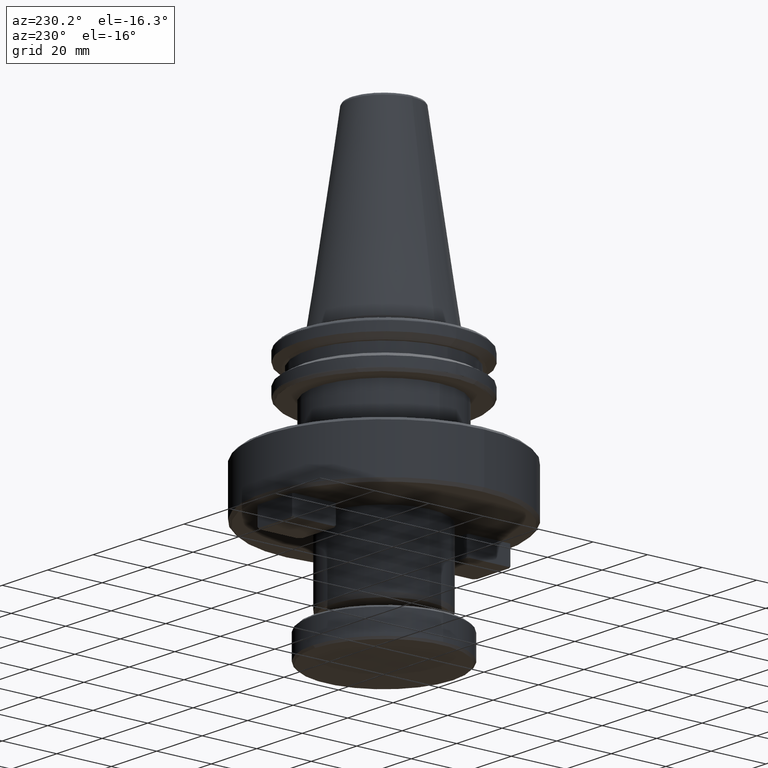
[diagram: clean part render]
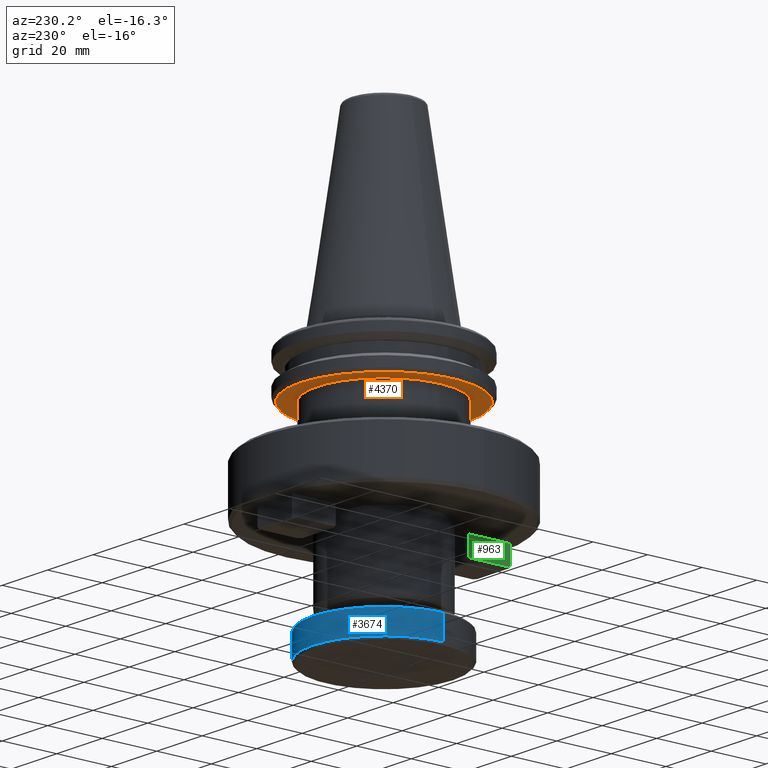
[diagram: same view with three faces highlighted in distinct colors, each labeled with its STEP entity id]
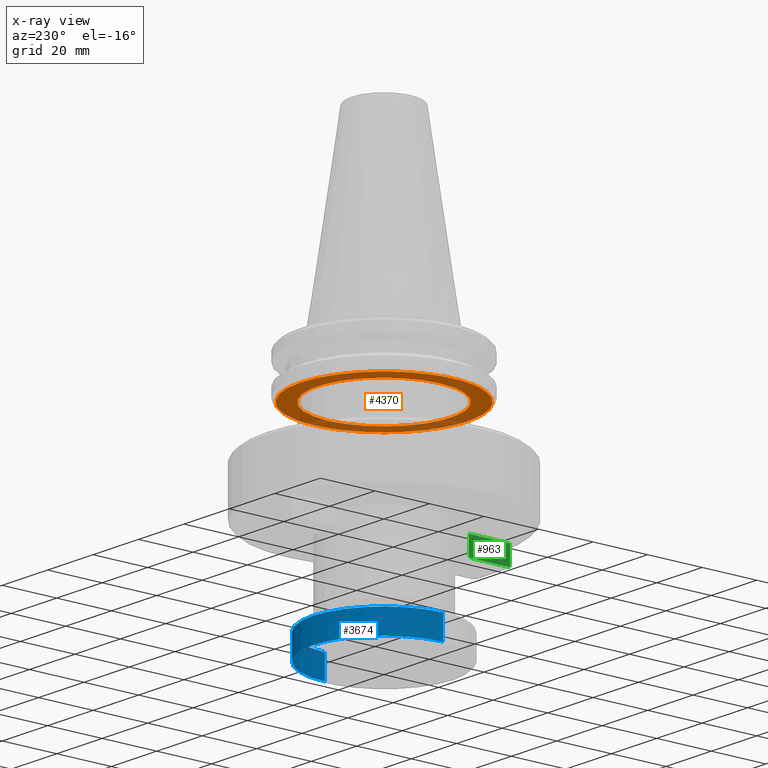
[diagram: x-ray of the same camera — body ghosted, the three highlighted faces saturated]
A machine part, auxiliary view with three faces highlighted in distinct colors.
The next image is the same camera in x-ray (body ghosted, the three faces saturated) — at least one of them is partly hidden behind the body in this view.
Their STEP definitions:

[orange] entity #4370 — the highlighted planar face has unit normal (0, 0, -1).
#21 = DIRECTION ( 'NONE',  ( -0.0000000000000000000, -0.0000000000000000000, -1.000000000000000000 ) ) ;
#43 = EDGE_CURVE ( 'NONE', #1158, #795, #3282, .T. ) ;
#159 = CARTESIAN_POINT ( 'NONE',  ( -9.218324187523917200, 29.16244582629286700, -19.10000000000000100 ) ) ;
#181 = CARTESIAN_POINT ( 'NONE',  ( 1.553459315967854200, 30.54770834860802300, -19.10000000000000900 ) ) ;
#196 = CARTESIAN_POINT ( 'NONE',  ( 8.686726280910074000, 29.34982920450148600, -19.10000000000000900 ) ) ;
#207 = CARTESIAN_POINT ( 'NONE',  ( 16.32111855271079600, 25.86556262578678700, -19.10000000000000100 ) ) ;
#224 = CARTESIAN_POINT ( 'NONE',  ( 24.32635705293869000, 18.53792103917297500, -19.10000000000000100 ) ) ;
#243 = CARTESIAN_POINT ( 'NONE',  ( 28.13442549670037700, 11.99570152419388200, -19.10000000000000500 ) ) ;
#258 = DIRECTION ( 'NONE',  ( -1.000000000000000000, 0.0000000000000000000, -0.0000000000000000000 ) ) ;
#291 = CARTESIAN_POINT ( 'NONE',  ( 24.50000000000000000, 0.0000000000000000000, -19.10000000000000500 ) ) ;
#438 = VERTEX_POINT ( 'NONE', #3830 ) ;
#448 = CARTESIAN_POINT ( 'NONE',  ( -29.50593695887982200, -8.050011640415929600, -19.10000000000000500 ) ) ;
#507 = ORIENTED_EDGE ( 'NONE', *, *, #43, .T. ) ;
#509 = CARTESIAN_POINT ( 'NONE',  ( 0.0000000000000000000, 2.166680460328873200E-015, -19.10000000000000500 ) ) ;
#525 = EDGE_CURVE ( 'NONE', #3223, #1986, #787, .T. ) ;
#528 = CARTESIAN_POINT ( 'NONE',  ( -8.767786026824518700, 29.30104552520869300, -19.10000000000000500 ) ) ;
#542 = CARTESIAN_POINT ( 'NONE',  ( 2.338937091250613300, 30.49485090081023100, -19.10000000000000100 ) ) ;
#561 = CARTESIAN_POINT ( 'NONE',  ( 11.26206975055332500, 28.44666309692501500, -19.10000000000000100 ) ) ;
#581 = CARTESIAN_POINT ( 'NONE',  ( 16.98334930198293300, 25.44334661411777900, -19.10000000000000500 ) ) ;
#591 = CARTESIAN_POINT ( 'NONE',  ( 24.61278002360990800, 18.15588099004128300, -19.10000000000000500 ) ) ;
#607 = CARTESIAN_POINT ( 'NONE',  ( 28.28372968616552200, 11.63773453184817400, -19.10000000000000900 ) ) ;
#629 = VERTEX_POINT ( 'NONE', #708 ) ;
#630 = FACE_BOUND ( 'NONE', #1817, .T. ) ;
#708 = CARTESIAN_POINT ( 'NONE',  ( 29.50593695887979000, 8.050011640416027300, -19.10000000000000500 ) ) ;
#747 = ORIENTED_EDGE ( 'NONE', *, *, #2159, .T. ) ;
#787 = CIRCLE ( 'NONE', #997, 30.58435880041008700 ) ;
#795 = VERTEX_POINT ( 'NONE', #448 ) ;
#801 = DIRECTION ( 'NONE',  ( -0.0000000000000000000, -0.0000000000000000000, 1.000000000000000000 ) ) ;
#811 = CIRCLE ( 'NONE', #2261, 30.58435880041008700 ) ;
#875 = CARTESIAN_POINT ( 'NONE',  ( -14.11067696108144500, 27.14738034496676300, -19.10000000000000500 ) ) ;
#881 = AXIS2_PLACEMENT_3D ( 'NONE', #3251, #3241, #3202 ) ;
#897 = CARTESIAN_POINT ( 'NONE',  ( -6.159607642682074100, 29.98451923137153200, -19.10000000000000500 ) ) ;
#906 = VERTEX_POINT ( 'NONE', #291 ) ;
#907 = DIRECTION ( 'NONE',  ( -0.0000000000000000000, -0.0000000000000000000, -1.000000000000000000 ) ) ;
#913 = CARTESIAN_POINT ( 'NONE',  ( 2.575749856820219300, 30.47575675141769800, -19.10000000000000500 ) ) ;
#927 = ORIENTED_EDGE ( 'NONE', *, *, #525, .F. ) ;
#934 = CARTESIAN_POINT ( 'NONE',  ( 12.72171218949350900, 27.81364574513149900, -19.10000000000000900 ) ) ;
#946 = CARTESIAN_POINT ( 'NONE',  ( 18.64294495310518600, 24.24904771131965500, -19.10000000000000900 ) ) ;
#966 = CARTESIAN_POINT ( 'NONE',  ( 25.60981177358732800, 16.74023069123413500, -19.10000000000000500 ) ) ;
#983 = CARTESIAN_POINT ( 'NONE',  ( 28.79848820868595600, 10.36927195262887700, -19.10000000000000500 ) ) ;
#997 = AXIS2_PLACEMENT_3D ( 'NONE', #1315, #1296, #1767 ) ;
#1150 = ORIENTED_EDGE ( 'NONE', *, *, #4350, .T. ) ;
#1158 = VERTEX_POINT ( 'NONE', #4073 ) ;
#1258 = CARTESIAN_POINT ( 'NONE',  ( -12.65743148084894200, 27.84302147053579500, -19.10000000000000500 ) ) ;
#1266 = EDGE_CURVE ( 'NONE', #3305, #629, #1864, .T. ) ;
#1282 = CARTESIAN_POINT ( 'NONE',  ( -3.335826507667983200, 30.41349938460541600, -19.10000000000000100 ) ) ;
#1292 = CARTESIAN_POINT ( 'NONE',  ( 4.194626064597124500, 30.30646449917461300, -19.10000000000000500 ) ) ;
#1296 = DIRECTION ( 'NONE',  ( -0.0000000000000000000, -0.0000000000000000000, 1.000000000000000000 ) ) ;
#1303 = CARTESIAN_POINT ( 'NONE',  ( -29.50593695887981500, 8.050011640415931400, -19.10000000000000500 ) ) ;
#1308 = CARTESIAN_POINT ( 'NONE',  ( 13.06536007812701200, 27.65325169537482700, -19.10000000000000100 ) ) ;
#1312 = CARTESIAN_POINT ( 'NONE',  ( 0.0000000000000000000, 0.0000000000000000000, -19.10000000000000500 ) ) ;
#1315 = CARTESIAN_POINT ( 'NONE',  ( 0.0000000000000000000, 0.0000000000000000000, -19.10000000000000500 ) ) ;
#1323 = CARTESIAN_POINT ( 'NONE',  ( 19.25930180620994000, 23.75930152089461000, -19.10000000000001200 ) ) ;
#1343 = CARTESIAN_POINT ( 'NONE',  ( 26.46695125748617600, 15.32790333300081500, -19.10000000000000900 ) ) ;
#1351 = CARTESIAN_POINT ( 'NONE',  ( 29.50593695887979000, 8.050011640416027300, -19.10000000000000500 ) ) ;
#1368 = AXIS2_PLACEMENT_3D ( 'NONE', #1312, #801, #2152 ) ;
#1611 = VERTEX_POINT ( 'NONE', #3702 ) ;
#1622 = CARTESIAN_POINT ( 'NONE',  ( -12.30602042319770800, 27.99943186576027500, -19.10000000000001600 ) ) ;
#1636 = CARTESIAN_POINT ( 'NONE',  ( -1.754889633223906300, 30.53434994063401200, -19.10000000000000500 ) ) ;
#1650 = CARTESIAN_POINT ( 'NONE',  ( 5.798126224598956200, 30.03039269424756300, -19.10000000000000100 ) ) ;
#1666 = CARTESIAN_POINT ( 'NONE',  ( -28.99013299704189700, 9.940434568560412700, -19.10000000000000100 ) ) ;
#1671 = CARTESIAN_POINT ( 'NONE',  ( 13.76217383423211000, 27.32011485464017000, -19.10000000000000500 ) ) ;
#1681 = CARTESIAN_POINT ( 'NONE',  ( 20.48123999505939400, 22.74936446789017100, -19.10000000000000100 ) ) ;
#1697 = CARTESIAN_POINT ( 'NONE',  ( 26.66158410836062100, 14.98553842598051500, -19.10000000000000500 ) ) ;
#1767 = DIRECTION ( 'NONE',  ( 1.000000000000000000, 0.0000000000000000000, 0.0000000000000000000 ) ) ;
#1805 = CARTESIAN_POINT ( 'NONE',  ( -27.75446977479884200, -12.84946292560067400, -19.10000000000000100 ) ) ;
#1806 = CARTESIAN_POINT ( 'NONE',  ( -27.60161413460691900, -13.17678050942531300, -19.10000000000001200 ) ) ;
#1809 = CARTESIAN_POINT ( 'NONE',  ( -27.28631539589520500, -13.82611176813281700, -19.10000000000000500 ) ) ;
#1817 = EDGE_LOOP ( 'NONE', ( #4106, #3552 ) ) ;
#1822 = CARTESIAN_POINT ( 'NONE',  ( 14.31298725537405200, -27.02868588326913700, -19.10000000000000500 ) ) ;
#1824 = EDGE_LOOP ( 'NONE', ( #507, #2512, #747, #927, #1150, #3383, #4107 ) ) ;
#1829 = CARTESIAN_POINT ( 'NONE',  ( 14.40947314747780600, -26.97737969063206300, -19.10000000000000500 ) ) ;
#1834 = CARTESIAN_POINT ( 'NONE',  ( 4.836401133027773200, -30.19953865469284100, -19.10000000000000100 ) ) ;
#1835 = CARTESIAN_POINT ( 'NONE',  ( 4.938364931540699700, -30.18303432026915800, -19.10000000000000500 ) ) ;
#1839 = CARTESIAN_POINT ( 'NONE',  ( 14.59906577416073300, -26.87526508911176700, -19.10000000000000500 ) ) ;
#1844 = CARTESIAN_POINT ( 'NONE',  ( 5.091218007676277900, -30.15789762491641200, -19.10000000000000900 ) ) ;
#1864 = CIRCLE ( 'NONE', #1368, 30.58435880041008700 ) ;
#1964 = CARTESIAN_POINT ( 'NONE',  ( -11.58667819376902100, 28.31160413811162600, -19.10000000000000900 ) ) ;
#1982 = CARTESIAN_POINT ( 'NONE',  ( -1.277990131494122400, 30.55800543620354400, -19.10000000000000500 ) ) ;
#1986 = VERTEX_POINT ( 'NONE', #2594 ) ;
#1998 = CARTESIAN_POINT ( 'NONE',  ( 6.178357567779041700, 29.95386665788899800, -19.10000000000000900 ) ) ;
#2006 = CARTESIAN_POINT ( 'NONE',  ( -26.56612284950205100, 15.28016086959555500, -19.10000000000000500 ) ) ;
#2010 = CARTESIAN_POINT ( 'NONE',  ( 15.52813128130545700, 26.35237235011442500, -19.10000000000000900 ) ) ;
#2024 = CARTESIAN_POINT ( 'NONE',  ( 22.71169545599505600, 20.49349008205810900, -19.10000000000000900 ) ) ;
#2028 = CARTESIAN_POINT ( 'NONE',  ( -20.23907096310340100, -22.95838911900774100, -19.10000000000000500 ) ) ;
#2042 = CARTESIAN_POINT ( 'NONE',  ( 27.03965408853028400, 14.30535447364331600, -19.10000000000000100 ) ) ;
#2046 = CARTESIAN_POINT ( 'NONE',  ( 5.447226833889317300, -30.09658397973939300, -19.10000000000000500 ) ) ;
#2047 = CARTESIAN_POINT ( 'NONE',  ( 6.156651080568798800, -29.96331126530298800, -19.10000000000000500 ) ) ;
#2050 = CARTESIAN_POINT ( 'NONE',  ( 7.565125950941371100, -29.65418414010071800, -19.10000000000000500 ) ) ;
#2107 = EDGE_CURVE ( 'NONE', #906, #438, #2710, .T. ) ;
#2110 = CARTESIAN_POINT ( 'NONE',  ( 28.94006249014968200, -9.948882374008352500, -19.10000000000000500 ) ) ;
#2152 = DIRECTION ( 'NONE',  ( 1.000000000000000000, 0.0000000000000000000, 0.0000000000000000000 ) ) ;
#2159 = EDGE_CURVE ( 'NONE', #1611, #1986, #3310, .T. ) ;
#2165 = CARTESIAN_POINT ( 'NONE',  ( 0.0000000000000000000, 0.0000000000000000000, -19.10000000000000500 ) ) ;
#2190 = AXIS2_PLACEMENT_3D ( 'NONE', #509, #2399, #258 ) ;
#2261 = AXIS2_PLACEMENT_3D ( 'NONE', #3369, #3113, #2674 ) ;
#2271 = CARTESIAN_POINT ( 'NONE',  ( -17.51886799372202900, 25.09995254383747500, -19.10000000000000500 ) ) ;
#2275 = CARTESIAN_POINT ( 'NONE',  ( -14.03061632106972200, -27.17633901377901000, -19.10000000000000900 ) ) ;
#2295 = CARTESIAN_POINT ( 'NONE',  ( -9.668279344121133400, 29.01896080072954100, -19.10000000000000500 ) ) ;
#2310 = CARTESIAN_POINT ( 'NONE',  ( 0.4531822849060669900, 30.59235866177671400, -19.10000000000000500 ) ) ;
#2327 = CARTESIAN_POINT ( 'NONE',  ( 7.517538265328743900, 29.67087649393396000, -19.10000000000000500 ) ) ;
#2343 = CARTESIAN_POINT ( 'NONE',  ( -24.35471234555335200, 18.50002675126641800, -19.10000000000000500 ) ) ;
#2350 = CARTESIAN_POINT ( 'NONE',  ( 16.18968749047009200, 25.94803225022423700, -19.10000000000000900 ) ) ;
#2365 = CARTESIAN_POINT ( 'NONE',  ( 24.03691940912555600, 18.91573389369128600, -19.10000000000000500 ) ) ;
#2381 = CARTESIAN_POINT ( 'NONE',  ( 27.91908508163535500, 12.49379923642603000, -19.10000000000000500 ) ) ;
#2399 = DIRECTION ( 'NONE',  ( 0.0000000000000000000, 0.0000000000000000000, -1.000000000000000000 ) ) ;
#2496 = CARTESIAN_POINT ( 'NONE',  ( -22.08505440506140600, -21.15804733461203200, -19.10000000000000100 ) ) ;
#2497 = CARTESIAN_POINT ( 'NONE',  ( -21.86129013470800300, -21.39082914621904400, -19.10000000000000100 ) ) ;
#2503 = CARTESIAN_POINT ( 'NONE',  ( -21.33119217829327100, -21.92514203399821300, -19.10000000000000500 ) ) ;
#2512 = ORIENTED_EDGE ( 'NONE', *, *, #3224, .F. ) ;
#2531 = DIRECTION ( 'NONE',  ( 1.000000000000000000, 0.0000000000000000000, 0.0000000000000000000 ) ) ;
#2536 = CARTESIAN_POINT ( 'NONE',  ( -27.86171205598864400, -12.61459124129725500, -19.10000000000000100 ) ) ;
#2538 = CARTESIAN_POINT ( 'NONE',  ( -27.88382002489398900, -12.56563911166203700, -19.10000000000000900 ) ) ;
#2563 = CARTESIAN_POINT ( 'NONE',  ( -22.95981042903576300, -20.22301021334099100, -19.10000000000000900 ) ) ;
#2572 = CARTESIAN_POINT ( 'NONE',  ( -22.30836331049845400, -20.92243750512144400, -19.10000000000000500 ) ) ;
#2573 = CARTESIAN_POINT ( 'NONE',  ( -22.23347045905034500, -21.00201711043238700, -19.10000000000000100 ) ) ;
#2583 = CARTESIAN_POINT ( 'NONE',  ( -15.74490649238654400, -26.27680638947031300, -19.10000000000000900 ) ) ;
#2585 = CARTESIAN_POINT ( 'NONE',  ( -14.12359010196327200, -27.12814019750088700, -19.10000000000000900 ) ) ;
#2590 = CARTESIAN_POINT ( 'NONE',  ( -27.81895210720312800, -12.70861568514636500, -19.10000000000000500 ) ) ;
#2594 = CARTESIAN_POINT ( 'NONE',  ( -24.35471234555335200, 18.50002675126641800, -19.10000000000000500 ) ) ;
#2609 = CARTESIAN_POINT ( 'NONE',  ( -24.67913322280990200, -18.07380832753302600, -19.10000000000000500 ) ) ;
#2613 = CARTESIAN_POINT ( 'NONE',  ( -23.78688261721307700, -19.25759772824421400, -19.10000000000000100 ) ) ;
#2618 = CARTESIAN_POINT ( 'NONE',  ( -26.61736808516047900, -15.10355864978086500, -19.10000000000000500 ) ) ;
#2631 = CARTESIAN_POINT ( 'NONE',  ( 9.892237708290188900, -28.94069923155255000, -19.10000000000000500 ) ) ;
#2640 = CARTESIAN_POINT ( 'NONE',  ( 10.24327173504158100, -28.81937833701286400, -19.10000000000000500 ) ) ;
#2649 = CARTESIAN_POINT ( 'NONE',  ( -29.08795742227681900, -9.581875916355663500, -19.09999999999999800 ) ) ;
#2653 = CARTESIAN_POINT ( 'NONE',  ( -28.55403585648227600, -11.07200170706531000, -19.10000000000000100 ) ) ;
#2656 = CARTESIAN_POINT ( 'NONE',  ( -8.917516567687371800, 29.25582015750815400, -19.10000000000000500 ) ) ;
#2659 = CARTESIAN_POINT ( 'NONE',  ( 23.37016937102523100, -19.73720656645907200, -19.10000000000000500 ) ) ;
#2664 = CARTESIAN_POINT ( 'NONE',  ( 24.31095900104777700, -18.59161355311120500, -19.10000000000000900 ) ) ;
#2668 = CARTESIAN_POINT ( 'NONE',  ( 2.103333420339649000, 30.51262227300270200, -19.10000000000000100 ) ) ;
#2674 = DIRECTION ( 'NONE',  ( 1.000000000000000000, 0.0000000000000000000, 0.0000000000000000000 ) ) ;
#2690 = CARTESIAN_POINT ( 'NONE',  ( 10.41034370100355100, 28.76445469558826700, -19.10000000000000500 ) ) ;
#2692 = CARTESIAN_POINT ( 'NONE',  ( -25.46428937167067700, -16.94027857338939600, -19.10000000000000500 ) ) ;
#2697 = CARTESIAN_POINT ( 'NONE',  ( 22.45416143053250800, -20.76589565598027000, -19.10000000000000500 ) ) ;
#2699 = CARTESIAN_POINT ( 'NONE',  ( 16.38572052405262600, 25.82468945861612000, -19.10000000000000100 ) ) ;
#2703 = CARTESIAN_POINT ( 'NONE',  ( -8.158427338735364700, -29.48125659895528400, -19.10000000000000500 ) ) ;
#2704 = CARTESIAN_POINT ( 'NONE',  ( -6.763633612821551300, -29.84719582226912800, -19.10000000000000500 ) ) ;
#2710 = CIRCLE ( 'NONE', #3186, 24.50000000000000000 ) ;
#2717 = CARTESIAN_POINT ( 'NONE',  ( 24.51742230446014800, 18.28446092688399100, -19.10000000000000500 ) ) ;
#2734 = CARTESIAN_POINT ( 'NONE',  ( 28.22432639104233900, 11.78107541670503600, -19.10000000000000500 ) ) ;
#2769 = CARTESIAN_POINT ( 'NONE',  ( 19.93308098988654800, -23.26029377377305400, -19.10000000000000900 ) ) ;
#2770 = CARTESIAN_POINT ( 'NONE',  ( 21.20610461385350800, -22.10596665135101400, -19.10000000000000100 ) ) ;
#2774 = CARTESIAN_POINT ( 'NONE',  ( -13.84162992577100000, -27.27309109750847700, -19.10000000000000500 ) ) ;
#2803 = CARTESIAN_POINT ( 'NONE',  ( 25.05482143306667100, -17.56072154682019400, -19.10000000000000500 ) ) ;
#2813 = AXIS2_PLACEMENT_3D ( 'NONE', #2165, #21, #2531 ) ;
#2831 = CARTESIAN_POINT ( 'NONE',  ( -4.683322544848318900, -30.22365628541788900, -19.10000000000000500 ) ) ;
#2836 = CARTESIAN_POINT ( 'NONE',  ( -4.636279539811212700, -30.23090493186514000, -19.10000000000000100 ) ) ;
#2842 = EDGE_CURVE ( 'NONE', #438, #906, #3210, .T. ) ;
#2852 = CARTESIAN_POINT ( 'NONE',  ( -3.359542261740482900, -30.40384640239971500, -19.10000000000000500 ) ) ;
#2855 = CARTESIAN_POINT ( 'NONE',  ( 3.166151006705770800, -30.46140382597060600, -19.10000000000001200 ) ) ;
#2859 = CARTESIAN_POINT ( 'NONE',  ( 4.783350766199017600, -30.20798338819395200, -19.10000000000000500 ) ) ;
#2866 = CARTESIAN_POINT ( 'NONE',  ( 9.588757991871142700, -29.04235927048969000, -19.10000000000000100 ) ) ;
#2869 = CARTESIAN_POINT ( 'NONE',  ( 9.640580262597561400, -29.02520083562890100, -19.10000000000000500 ) ) ;
#2877 = CARTESIAN_POINT ( 'NONE',  ( 10.94079956306805100, -28.56608249322954800, -19.10000000000000900 ) ) ;
#2916 = CARTESIAN_POINT ( 'NONE',  ( -10.34692081642918300, -28.79347578717342800, -19.10000000000000500 ) ) ;
#2919 = CARTESIAN_POINT ( 'NONE',  ( -9.489238364085435900, -29.07503083623364400, -19.10000000000000900 ) ) ;
#2923 = CARTESIAN_POINT ( 'NONE',  ( -4.538187366338957100, -30.24578697828068400, -19.10000000000000100 ) ) ;
#2963 = CARTESIAN_POINT ( 'NONE',  ( 28.04473044301726900, -12.20290262157235800, -19.10000000000000100 ) ) ;
#2974 = CARTESIAN_POINT ( 'NONE',  ( -4.391022105728267500, -30.26774995785368500, -19.10000000000000500 ) ) ;
#2975 = CARTESIAN_POINT ( 'NONE',  ( -4.047447494820515200, -30.31647627983856800, -19.10000000000000900 ) ) ;
#2997 = CARTESIAN_POINT ( 'NONE',  ( 27.92527061286967100, -12.47325821572505000, -19.10000000000000900 ) ) ;
#3001 = CARTESIAN_POINT ( 'NONE',  ( -15.99112436415940900, 26.12219316515105300, -19.10000000000000900 ) ) ;
#3012 = CARTESIAN_POINT ( 'NONE',  ( -19.24823797460855300, -23.78338029378941300, -19.10000000000001200 ) ) ;
#3013 = CARTESIAN_POINT ( 'NONE',  ( -17.19359987793792800, -25.35249706495551100, -19.10000000000000900 ) ) ;
#3015 = CARTESIAN_POINT ( 'NONE',  ( -7.396785857642844200, 29.70357443817780300, -19.10000000000000100 ) ) ;
#3029 = CARTESIAN_POINT ( 'NONE',  ( 0.0000000000000000000, 0.0000000000000000000, -19.10000000000000500 ) ) ;
#3030 = CARTESIAN_POINT ( 'NONE',  ( 29.29697359829781100, -8.815762972852718700, -19.10000000000000500 ) ) ;
#3031 = CARTESIAN_POINT ( 'NONE',  ( -25.10709178878912300, -17.46754491848619800, -19.10000000000000500 ) ) ;
#3033 = CARTESIAN_POINT ( 'NONE',  ( 2.495993614183678500, 30.48239565653807800, -19.10000000000000500 ) ) ;
#3035 = CARTESIAN_POINT ( 'NONE',  ( -25.97824210456839800, -16.16214345845010000, -19.10000000000000100 ) ) ;
#3036 = CARTESIAN_POINT ( 'NONE',  ( -25.49448276515892400, -16.89479980230323600, -19.10000000000000900 ) ) ;
#3046 = CARTESIAN_POINT ( 'NONE',  ( 12.23810548582505600, 28.03197362945626700, -19.10000000000000500 ) ) ;
#3049 = CARTESIAN_POINT ( 'NONE',  ( 25.72060642469137200, -16.54900938329657500, -19.10000000000000500 ) ) ;
#3055 = CARTESIAN_POINT ( 'NONE',  ( 25.91506848432963000, -16.24456535706762800, -19.10000000000000500 ) ) ;
#3063 = CARTESIAN_POINT ( 'NONE',  ( 17.76311001678113400, 24.91123626348944600, -19.10000000000000100 ) ) ;
#3065 = CARTESIAN_POINT ( 'NONE',  ( -25.40531514043783900, -17.02859819238312900, -19.10000000000000500 ) ) ;
#3066 = CARTESIAN_POINT ( 'NONE',  ( -25.31652938757393300, -17.16082103678996200, -19.10000000000000100 ) ) ;
#3069 = CARTESIAN_POINT ( 'NONE',  ( 30.58435880041008700, 0.0000000000000000000, -19.10000000000000500 ) ) ;
#3079 = CARTESIAN_POINT ( 'NONE',  ( 25.07711885281372900, 17.51959354323408400, -19.10000000000000100 ) ) ;
#3092 = CARTESIAN_POINT ( 'NONE',  ( 28.31382758094056800, 11.56430445685524000, -19.10000000000000900 ) ) ;
#3113 = DIRECTION ( 'NONE',  ( -0.0000000000000000000, -0.0000000000000000000, 1.000000000000000000 ) ) ;
#3114 = CARTESIAN_POINT ( 'NONE',  ( 22.88153702451384300, -20.29572449130178000, -19.10000000000000100 ) ) ;
#3137 = CARTESIAN_POINT ( 'NONE',  ( 9.741308101238560700, -28.99155239477984500, -19.10000000000000900 ) ) ;
#3146 = CARTESIAN_POINT ( 'NONE',  ( 26.29437709911257700, -15.63042418696883700, -19.10000000000000500 ) ) ;
#3170 = CARTESIAN_POINT ( 'NONE',  ( -13.55750927079556900, -27.41669403125807100, -19.10000000000000500 ) ) ;
#3177 = CARTESIAN_POINT ( 'NONE',  ( -12.89007364166148800, -27.74109120042835400, -19.10000000000000100 ) ) ;
#3184 = CARTESIAN_POINT ( 'NONE',  ( -9.441481674779128100, -29.09057131782455500, -19.10000000000000500 ) ) ;
#3186 = AXIS2_PLACEMENT_3D ( 'NONE', #3029, #907, #3367 ) ;
#3194 = CARTESIAN_POINT ( 'NONE',  ( 17.87849741863398000, -24.82948193938068100, -19.10000000000000100 ) ) ;
#3195 = CARTESIAN_POINT ( 'NONE',  ( 25.55219655712748800, -16.80738867178014600, -19.10000000000000900 ) ) ;
#3200 = CARTESIAN_POINT ( 'NONE',  ( 25.57975895856417400, -16.76540627108043000, -19.10000000000000100 ) ) ;
#3202 = DIRECTION ( 'NONE',  ( 1.000000000000000000, 0.0000000000000000000, 0.0000000000000000000 ) ) ;
#3210 = CIRCLE ( 'NONE', #2813, 24.50000000000000000 ) ;
#3223 = VERTEX_POINT ( 'NONE', #3325 ) ;
#3224 = EDGE_CURVE ( 'NONE', #1611, #795, #3806, .T. ) ;
#3235 = CARTESIAN_POINT ( 'NONE',  ( -1.980707750522268800, -30.53825656188765000, -19.10000000000000900 ) ) ;
#3240 = CARTESIAN_POINT ( 'NONE',  ( -0.7936655208069568500, -30.58432798036122000, -19.10000000000000100 ) ) ;
#3241 = DIRECTION ( 'NONE',  ( -0.0000000000000000000, -0.0000000000000000000, 1.000000000000000000 ) ) ;
#3244 = CARTESIAN_POINT ( 'NONE',  ( -5.550699401406691700, -30.08776695510170300, -19.10000000000000500 ) ) ;
#3250 = CARTESIAN_POINT ( 'NONE',  ( 12.31769431721571500, -28.01687458684701700, -19.10000000000000500 ) ) ;
#3251 = CARTESIAN_POINT ( 'NONE',  ( 0.0000000000000000000, 0.0000000000000000000, -19.10000000000000500 ) ) ;
#3256 = CARTESIAN_POINT ( 'NONE',  ( 13.46675684607612000, -27.47306857769193300, -19.10000000000000900 ) ) ;
#3257 = CARTESIAN_POINT ( 'NONE',  ( 1.587331041613742700, -30.58428776442982800, -19.10000000000000500 ) ) ;
#3282 = B_SPLINE_CURVE_WITH_KNOTS ( 'NONE', 3,
 ( #3507, #3030, #2110, #3315, #3314, #2963, #3603, #3601, #2997, #3645, #3643, #3146, #3055, #3049, #3610, #3200, #3195, #2803, #2664, #2659, #3114, #3493, #3489, #2697, #2770, #2769, #3194, #4333, #4132, #4225, #1839, #1829, #1822, #3256, #3250, #2877, #2640, #2631, #3137, #2869, #2866, #3593, #2050, #2047, #2046, #1844, #1835, #1834, #2859, #2855, #3257, #3240, #3235, #2852, #2975, #2974, #2923, #2836, #2831, #3244, #2704, #2703, #3429, #3513, #3509, #3184, #2919, #2916, #3334, #3177, #3170, #2774, #2275, #2585, #2583, #3013, #3012, #2028, #2503, #2497, #2496, #2573, #2572, #2563, #2613, #2609, #3031, #3066, #3065, #2692, #3036, #3035, #2618, #1809, #1806, #1805, #2590, #2536, #2538, #2653, #2649, #3521 ),
 .UNSPECIFIED., .F., .F.,
 ( 4, 1, 1, 1, 1, 2, 2, 1, 1, 1, 1, 2, 2, 1, 1, 1, 2, 2, 2, 1, 1, 1, 2, 2, 1, 1, 1, 1, 2, 2, 1, 1, 1, 1, 2, 2, 2, 1, 1, 1, 1, 2, 2, 1, 1, 1, 1, 2, 2, 1, 1, 1, 2, 2, 2, 1, 1, 1, 2, 2, 1, 1, 1, 1, 2, 2, 1, 1, 1, 1, 2, 2, 4 ),
 ( 0.0000000000000000000, 0.03125000000000043000, 0.04687500000000063800, 0.05468750000000073600, 0.05859375000000075600, 0.06054687500000074200, 0.06250000000000072200, 0.09375000000000025000, 0.1093750000000000400, 0.1171874999999999200, 0.1210937499999997900, 0.1230468749999997600, 0.1249999999999997400, 0.1562499999999992200, 0.1718749999999989700, 0.1796874999999988600, 0.1835937499999988100, 0.1874999999999987500, 0.2499999999999989500, 0.2812499999999990000, 0.2968749999999991100, 0.3046874999999991700, 0.3085937499999991700, 0.3124999999999991100, 0.3437499999999990600, 0.3593749999999990600, 0.3671874999999990600, 0.3710937499999991100, 0.3730468749999991700, 0.3749999999999991700, 0.4062499999999991100, 0.4218749999999990600, 0.4296874999999990600, 0.4335937499999990600, 0.4355468749999990600, 0.4374999999999990600, 0.4999999999999995000, 0.5312499999999997800, 0.5468749999999998900, 0.5546875000000000000, 0.5585937500000000000, 0.5605468750000001100, 0.5625000000000001100, 0.5937500000000005600, 0.6093750000000007800, 0.6171875000000008900, 0.6210937500000008900, 0.6230468750000008900, 0.6250000000000008900, 0.6562500000000010000, 0.6718750000000010000, 0.6796875000000010000, 0.6835937500000011100, 0.6875000000000011100, 0.7500000000000013300, 0.7812500000000013300, 0.7968750000000013300, 0.8046875000000013300, 0.8085937500000012200, 0.8125000000000012200, 0.8437500000000014400, 0.8593750000000015500, 0.8671875000000015500, 0.8710937500000015500, 0.8730468750000015500, 0.8750000000000015500, 0.9062500000000016700, 0.9218750000000017800, 0.9296875000000017800, 0.9335937500000017800, 0.9355468750000017800, 0.9375000000000017800, 1.000000000000000000 ),
 .UNSPECIFIED. ) ;
#3305 = VERTEX_POINT ( 'NONE', #3069 ) ;
#3310 = B_SPLINE_CURVE_WITH_KNOTS ( 'NONE', 3,
 ( #1303, #1666, #4000, #2006, #4296, #2343 ),
 .UNSPECIFIED., .F., .F.,
 ( 4, 2, 4 ),
 ( 0.0000000000000000000, 0.5000000000000000000, 1.000000000000000000 ),
 .UNSPECIFIED. ) ;
#3314 = CARTESIAN_POINT ( 'NONE',  ( 28.18215722315982000, -11.88429583552771100, -19.10000000000000100 ) ) ;
#3315 = CARTESIAN_POINT ( 'NONE',  ( 28.44748858146412100, -11.24368615697392600, -19.10000000000000100 ) ) ;
#3325 = CARTESIAN_POINT ( 'NONE',  ( -18.50002675126641800, 24.35471234555335200, -19.10000000000000500 ) ) ;
#3334 = CARTESIAN_POINT ( 'NONE',  ( -11.53725264662773900, -28.34718016712044900, -19.10000000000000900 ) ) ;
#3341 = CARTESIAN_POINT ( 'NONE',  ( -13.14593330072873200, 27.61811721527876200, -19.10000000000000900 ) ) ;
#3352 = CARTESIAN_POINT ( 'NONE',  ( -4.279122215993030700, 30.29015284362106900, -19.10000000000000500 ) ) ;
#3367 = DIRECTION ( 'NONE',  ( 1.000000000000000000, 0.0000000000000000000, 0.0000000000000000000 ) ) ;
#3369 = CARTESIAN_POINT ( 'NONE',  ( 0.0000000000000000000, 0.0000000000000000000, -19.10000000000000500 ) ) ;
#3370 = CARTESIAN_POINT ( 'NONE',  ( 3.271282400886674800, 30.41520625110938200, -19.10000000000000500 ) ) ;
#3383 = ORIENTED_EDGE ( 'NONE', *, *, #1266, .F. ) ;
#3386 = CARTESIAN_POINT ( 'NONE',  ( 12.92802695592982500, 27.71772311958008600, -19.10000000000000900 ) ) ;
#3403 = CARTESIAN_POINT ( 'NONE',  ( 19.01361294775681200, 23.95638265829615000, -19.09999999999999800 ) ) ;
#3417 = CARTESIAN_POINT ( 'NONE',  ( 26.18838791784893500, 15.80329267786272900, -19.10000000000000500 ) ) ;
#3429 = CARTESIAN_POINT ( 'NONE',  ( -8.850750154841392700, -29.27696876187939500, -19.10000000000000500 ) ) ;
#3438 = CARTESIAN_POINT ( 'NONE',  ( 29.18634062978594200, 9.221269143563914000, -19.10000000000000500 ) ) ;
#3489 = CARTESIAN_POINT ( 'NONE',  ( 22.52513206187470700, -20.68888644021010800, -19.10000000000000900 ) ) ;
#3493 = CARTESIAN_POINT ( 'NONE',  ( 22.66821511925894200, -20.53202962012767000, -19.10000000000000500 ) ) ;
#3507 = CARTESIAN_POINT ( 'NONE',  ( 29.50593695887981500, -8.050011640415931400, -19.10000000000000500 ) ) ;
#3509 = CARTESIAN_POINT ( 'NONE',  ( -9.343182468531940900, -29.12229317852812500, -19.10000000000000500 ) ) ;
#3513 = CARTESIAN_POINT ( 'NONE',  ( -9.195643051181685100, -29.16949528698672400, -19.10000000000000900 ) ) ;
#3521 = CARTESIAN_POINT ( 'NONE',  ( -29.50593695887982200, -8.050011640415929600, -19.10000000000000500 ) ) ;
#3552 = ORIENTED_EDGE ( 'NONE', *, *, #2842, .F. ) ;
#3593 = CARTESIAN_POINT ( 'NONE',  ( 8.754606771855487000, -29.31622083907685900, -19.10000000000000100 ) ) ;
#3601 = CARTESIAN_POINT ( 'NONE',  ( 27.94464134489557200, -12.42979159005786200, -19.10000000000001200 ) ) ;
#3603 = CARTESIAN_POINT ( 'NONE',  ( 27.98481301560113700, -12.33908451847029400, -19.10000000000000500 ) ) ;
#3610 = CARTESIAN_POINT ( 'NONE',  ( 25.63623530936496000, -16.67892256050461000, -19.10000000000000500 ) ) ;
#3643 = CARTESIAN_POINT ( 'NONE',  ( 27.01453231070431500, -14.38112937620777400, -19.10000000000000900 ) ) ;
#3645 = CARTESIAN_POINT ( 'NONE',  ( 27.56587331839861600, -13.27428387458943800, -19.09999999999999800 ) ) ;
#3671 = CARTESIAN_POINT ( 'NONE',  ( -12.44675998882116000, 27.93716668423903100, -19.10000000000000500 ) ) ;
#3681 = CARTESIAN_POINT ( 'NONE',  ( -2.229972106739516000, 30.50583071842478200, -19.10000000000000500 ) ) ;
#3687 = B_SPLINE_CURVE_WITH_KNOTS ( 'NONE', 3,
 ( #3952, #2271, #3001, #875, #3341, #1258, #3671, #1622, #3965, #1964, #4252, #2295, #159, #2656, #528, #3015, #897, #3352, #1282, #3681, #1636, #3981, #1982, #4269, #2310, #181, #2668, #542, #3033, #913, #3370, #1292, #3700, #1650, #3993, #1998, #4285, #2327, #196, #2690, #561, #3046, #934, #3386, #1308, #3708, #1671, #4003, #2010, #4298, #2350, #207, #2699, #581, #3063, #946, #3403, #1323, #3721, #1681, #4016, #2024, #4310, #2365, #224, #2717, #591, #3079, #966, #3417, #1343, #3735, #1697, #4026, #2042, #4323, #2381, #243, #2734, #607, #3092, #983, #3438, #1351 ),
 .UNSPECIFIED., .F., .F.,
 ( 4, 1, 1, 1, 1, 2, 2, 1, 1, 2, 2, 2, 1, 1, 2, 2, 1, 1, 1, 2, 2, 1, 1, 1, 2, 2, 2, 1, 1, 1, 2, 2, 1, 1, 1, 2, 2, 1, 1, 2, 2, 2, 1, 1, 2, 2, 1, 1, 1, 2, 2, 1, 1, 1, 2, 2, 4 ),
 ( 0.0000000000000000000, 0.06250000000000043000, 0.09375000000000063800, 0.1093750000000007500, 0.1171875000000008000, 0.1210937500000008700, 0.1250000000000009400, 0.1562500000000016900, 0.1718750000000020300, 0.1796875000000022200, 0.1875000000000024100, 0.2500000000000042200, 0.2812500000000051600, 0.2968750000000056100, 0.3046875000000058300, 0.3125000000000060500, 0.3437500000000069400, 0.3593750000000073800, 0.3671875000000076100, 0.3710937500000076600, 0.3750000000000077700, 0.4062500000000085500, 0.4218750000000089900, 0.4296875000000092100, 0.4335937500000093800, 0.4375000000000094900, 0.5000000000000109900, 0.5312500000000117700, 0.5468750000000121000, 0.5546875000000122100, 0.5585937500000123200, 0.5625000000000123200, 0.5937500000000121000, 0.6093750000000119900, 0.6171875000000117700, 0.6210937500000117700, 0.6250000000000116600, 0.6562500000000113200, 0.6718750000000111000, 0.6796875000000108800, 0.6875000000000107700, 0.7500000000000093300, 0.7812500000000086600, 0.7968750000000082200, 0.8046875000000079900, 0.8125000000000076600, 0.8437500000000067700, 0.8593750000000063300, 0.8671875000000061100, 0.8710937500000060000, 0.8750000000000058800, 0.9062500000000048800, 0.9218750000000044400, 0.9296875000000043300, 0.9335937500000041100, 0.9375000000000038900, 1.000000000000000000 ),
 .UNSPECIFIED. ) ;
#3700 = CARTESIAN_POINT ( 'NONE',  ( 5.264802480930863600, 30.13058555675097900, -19.10000000000000100 ) ) ;
#3702 = CARTESIAN_POINT ( 'NONE',  ( -29.50593695887981500, 8.050011640415931400, -19.10000000000000500 ) ) ;
#3708 = CARTESIAN_POINT ( 'NONE',  ( 13.13240365255261600, 27.62148087363473100, -19.10000000000000500 ) ) ;
#3721 = CARTESIAN_POINT ( 'NONE',  ( 19.38055795302008400, 23.66050113822976500, -19.10000000000001200 ) ) ;
#3735 = CARTESIAN_POINT ( 'NONE',  ( 26.58403738893923300, 15.12268211273652300, -19.10000000000000100 ) ) ;
#3806 = CIRCLE ( 'NONE', #881, 30.58435880041008700 ) ;
#3830 = CARTESIAN_POINT ( 'NONE',  ( -24.50000000000000000, 3.000384657911015500E-015, -19.10000000000000500 ) ) ;
#3952 = CARTESIAN_POINT ( 'NONE',  ( -18.50002675126641800, 24.35471234555335200, -19.10000000000000500 ) ) ;
#3965 = CARTESIAN_POINT ( 'NONE',  ( -12.23711360209160000, 28.02961778932873900, -19.10000000000000900 ) ) ;
#3981 = CARTESIAN_POINT ( 'NONE',  ( -1.437913567965121800, 30.55090690001179600, -19.10000000000000900 ) ) ;
#3993 = CARTESIAN_POINT ( 'NONE',  ( 6.026315443778401900, 29.98482716932647900, -19.10000000000000500 ) ) ;
#4000 = CARTESIAN_POINT ( 'NONE',  ( -28.29883549210119800, 11.76494105805098300, -19.10000000000000500 ) ) ;
#4003 = CARTESIAN_POINT ( 'NONE',  ( 14.58823882257053300, 26.89349445919003000, -19.10000000000000500 ) ) ;
#4016 = CARTESIAN_POINT ( 'NONE',  ( 21.40627702113345900, 21.88112117654264600, -19.10000000000000500 ) ) ;
#4026 = CARTESIAN_POINT ( 'NONE',  ( 26.70070361132738800, 14.91571867381870400, -19.10000000000000100 ) ) ;
#4073 = CARTESIAN_POINT ( 'NONE',  ( 29.50593695887981500, -8.050011640415931400, -19.10000000000000500 ) ) ;
#4106 = ORIENTED_EDGE ( 'NONE', *, *, #2107, .F. ) ;
#4107 = ORIENTED_EDGE ( 'NONE', *, *, #4210, .F. ) ;
#4132 = CARTESIAN_POINT ( 'NONE',  ( 15.53753395421813000, -26.34988902405435600, -19.10000000000000900 ) ) ;
#4210 = EDGE_CURVE ( 'NONE', #1158, #3305, #811, .T. ) ;
#4225 = CARTESIAN_POINT ( 'NONE',  ( 14.88253584773120200, -26.72066063288397000, -19.10000000000000100 ) ) ;
#4230 = FACE_OUTER_BOUND ( 'NONE', #1824, .T. ) ;
#4252 = CARTESIAN_POINT ( 'NONE',  ( -10.70938079741142000, 28.66019770656558000, -19.10000000000000100 ) ) ;
#4269 = CARTESIAN_POINT ( 'NONE',  ( -0.4908188656923748200, 30.58687863642091600, -19.10000000000000900 ) ) ;
#4285 = CARTESIAN_POINT ( 'NONE',  ( 6.256069620680725600, 29.93772805485906800, -19.10000000000000900 ) ) ;
#4296 = CARTESIAN_POINT ( 'NONE',  ( -25.54018883534800800, 16.93931054832113100, -19.10000000000000500 ) ) ;
#4298 = CARTESIAN_POINT ( 'NONE',  ( 15.99211500375794700, 26.07096171698068000, -19.10000000000000900 ) ) ;
#4310 = CARTESIAN_POINT ( 'NONE',  ( 23.34168654117829400, 19.78065602349450500, -19.10000000000000500 ) ) ;
#4323 = CARTESIAN_POINT ( 'NONE',  ( 27.46611760510352000, 13.47920850658973700, -19.10000000000000900 ) ) ;
#4333 = CARTESIAN_POINT ( 'NONE',  ( 16.82180190648200500, -25.56823429586928900, -19.10000000000000500 ) ) ;
#4339 = PLANE ( 'NONE',  #2190 ) ;
#4350 = EDGE_CURVE ( 'NONE', #3223, #629, #3687, .T. ) ;
#4370 = ADVANCED_FACE ( 'NONE', ( #630, #4230 ), #4339, .T. ) ;

[blue] entity #3674 — the highlighted cylindrical surface (partial cylindrical patch) has radius 26 mm, axis along (0, 0, 1).
#40 = EDGE_CURVE ( 'NONE', #2088, #4048, #2839, .T. ) ;
#72 = EDGE_CURVE ( 'NONE', #1327, #3974, #3115, .T. ) ;
#95 = VECTOR ( 'NONE', #3373, 1000.000000000000000 ) ;
#108 = CARTESIAN_POINT ( 'NONE',  ( -25.99999999999999600, 3.184081677783117800E-015, -95.29999999999998300 ) ) ;
#183 = CARTESIAN_POINT ( 'NONE',  ( 25.99999999999999600, 0.0000000000000000000, 0.0000000000000000000 ) ) ;
#426 = VECTOR ( 'NONE', #1522, 1000.000000000000000 ) ;
#779 = DIRECTION ( 'NONE',  ( -0.0000000000000000000, -0.0000000000000000000, 1.000000000000000000 ) ) ;
#838 = DIRECTION ( 'NONE',  ( -1.000000000000000000, 0.0000000000000000000, 0.0000000000000000000 ) ) ;
#854 = ORIENTED_EDGE ( 'NONE', *, *, #2438, .T. ) ;
#903 = DIRECTION ( 'NONE',  ( 1.000000000000000000, 0.0000000000000000000, 0.0000000000000000000 ) ) ;
#921 = CARTESIAN_POINT ( 'NONE',  ( 0.0000000000000000000, 0.0000000000000000000, 0.0000000000000000000 ) ) ;
#1004 = CIRCLE ( 'NONE', #1209, 25.99999999999999600 ) ;
#1019 = DIRECTION ( 'NONE',  ( 0.0000000000000000000, 0.0000000000000000000, 1.000000000000000000 ) ) ;
#1209 = AXIS2_PLACEMENT_3D ( 'NONE', #1997, #2268, #2009 ) ;
#1327 = VERTEX_POINT ( 'NONE', #1840 ) ;
#1448 = AXIS2_PLACEMENT_3D ( 'NONE', #2554, #779, #838 ) ;
#1494 = VERTEX_POINT ( 'NONE', #108 ) ;
#1522 = DIRECTION ( 'NONE',  ( 0.0000000000000000000, 0.0000000000000000000, 1.000000000000000000 ) ) ;
#1571 = AXIS2_PLACEMENT_3D ( 'NONE', #2069, #2672, #2671 ) ;
#1599 = EDGE_CURVE ( 'NONE', #1327, #1729, #3616, .T. ) ;
#1729 = VERTEX_POINT ( 'NONE', #3420 ) ;
#1766 = ORIENTED_EDGE ( 'NONE', *, *, #72, .T. ) ;
#1840 = CARTESIAN_POINT ( 'NONE',  ( 25.99999999999999600, 0.0000000000000000000, -95.29999999999998300 ) ) ;
#1997 = CARTESIAN_POINT ( 'NONE',  ( 0.0000000000000000000, 0.0000000000000000000, -95.29999999999998300 ) ) ;
#2009 = DIRECTION ( 'NONE',  ( 1.000000000000000000, 0.0000000000000000000, 0.0000000000000000000 ) ) ;
#2069 = CARTESIAN_POINT ( 'NONE',  ( 0.0000000000000000000, 0.0000000000000000000, -86.70000000000001700 ) ) ;
#2077 = DIRECTION ( 'NONE',  ( 0.0000000000000000000, 0.0000000000000000000, 1.000000000000000000 ) ) ;
#2088 = VERTEX_POINT ( 'NONE', #2265 ) ;
#2111 = DIRECTION ( 'NONE',  ( 1.000000000000000000, 0.0000000000000000000, 0.0000000000000000000 ) ) ;
#2153 = CYLINDRICAL_SURFACE ( 'NONE', #3808, 25.99999999999999600 ) ;
#2235 = ORIENTED_EDGE ( 'NONE', *, *, #3812, .F. ) ;
#2265 = CARTESIAN_POINT ( 'NONE',  ( 0.0000000000000000000, 26.00000000000001800, -86.70000000000001700 ) ) ;
#2268 = DIRECTION ( 'NONE',  ( 0.0000000000000000000, 0.0000000000000000000, 1.000000000000000000 ) ) ;
#2438 = EDGE_CURVE ( 'NONE', #1494, #4048, #4085, .T. ) ;
#2454 = CARTESIAN_POINT ( 'NONE',  ( 0.0000000000000000000, 0.0000000000000000000, -95.29999999999998300 ) ) ;
#2554 = CARTESIAN_POINT ( 'NONE',  ( 0.0000000000000000000, 0.0000000000000000000, -86.70000000000001700 ) ) ;
#2574 = EDGE_LOOP ( 'NONE', ( #3426, #854, #3573, #2235, #4100, #1766 ) ) ;
#2671 = DIRECTION ( 'NONE',  ( -1.000000000000000000, -8.881784197001252300E-016, 0.0000000000000000000 ) ) ;
#2672 = DIRECTION ( 'NONE',  ( -0.0000000000000000000, -0.0000000000000000000, 1.000000000000000000 ) ) ;
#2839 = CIRCLE ( 'NONE', #1571, 25.99999999999999300 ) ;
#2867 = CIRCLE ( 'NONE', #1448, 25.99999999999999300 ) ;
#2999 = CARTESIAN_POINT ( 'NONE',  ( -25.99999999999999300, 3.184081677783117400E-015, -86.70000000000001700 ) ) ;
#3091 = AXIS2_PLACEMENT_3D ( 'NONE', #2454, #2077, #2111 ) ;
#3115 = CIRCLE ( 'NONE', #3091, 25.99999999999999600 ) ;
#3373 = DIRECTION ( 'NONE',  ( 0.0000000000000000000, 0.0000000000000000000, 1.000000000000000000 ) ) ;
#3420 = CARTESIAN_POINT ( 'NONE',  ( 25.99999999999999300, 0.0000000000000000000, -86.70000000000001700 ) ) ;
#3426 = ORIENTED_EDGE ( 'NONE', *, *, #3796, .T. ) ;
#3573 = ORIENTED_EDGE ( 'NONE', *, *, #40, .F. ) ;
#3578 = CARTESIAN_POINT ( 'NONE',  ( -25.99999999999999600, 3.184081677783117800E-015, 0.0000000000000000000 ) ) ;
#3616 = LINE ( 'NONE', #183, #95 ) ;
#3674 = ADVANCED_FACE ( 'NONE', ( #3937 ), #2153, .T. ) ;
#3796 = EDGE_CURVE ( 'NONE', #3974, #1494, #1004, .T. ) ;
#3808 = AXIS2_PLACEMENT_3D ( 'NONE', #921, #1019, #903 ) ;
#3812 = EDGE_CURVE ( 'NONE', #1729, #2088, #2867, .T. ) ;
#3867 = CARTESIAN_POINT ( 'NONE',  ( 3.184081677783116200E-015, 25.99999999999998200, -95.29999999999998300 ) ) ;
#3937 = FACE_OUTER_BOUND ( 'NONE', #2574, .T. ) ;
#3974 = VERTEX_POINT ( 'NONE', #3867 ) ;
#4048 = VERTEX_POINT ( 'NONE', #2999 ) ;
#4085 = LINE ( 'NONE', #3578, #426 ) ;
#4100 = ORIENTED_EDGE ( 'NONE', *, *, #1599, .F. ) ;

[green] entity #963 — the highlighted planar face has unit normal (1, -0, 0).
#94 = DIRECTION ( 'NONE',  ( 1.517883041479706200E-015, 1.000000000000000000, 0.0000000000000000000 ) ) ;
#100 = DIRECTION ( 'NONE',  ( 1.000000000000000000, -1.517883041479706200E-015, 0.0000000000000000000 ) ) ;
#122 = VERTEX_POINT ( 'NONE', #2194 ) ;
#126 = PLANE ( 'NONE',  #2756 ) ;
#129 = EDGE_CURVE ( 'NONE', #122, #4212, #3631, .T. ) ;
#142 = CARTESIAN_POINT ( 'NONE',  ( -8.000000000000028400, -40.00000000000002800, -62.00000000000000700 ) ) ;
#216 = VECTOR ( 'NONE', #1974, 1000.000000000000000 ) ;
#359 = EDGE_CURVE ( 'NONE', #709, #3684, #1386, .T. ) ;
#399 = ORIENTED_EDGE ( 'NONE', *, *, #359, .F. ) ;
#494 = LINE ( 'NONE', #2966, #1214 ) ;
#495 = CARTESIAN_POINT ( 'NONE',  ( -8.000000000000028400, -39.59999999999998700, -61.60000000000002300 ) ) ;
#503 = VERTEX_POINT ( 'NONE', #2129 ) ;
#526 = DIRECTION ( 'NONE',  ( 2.503857664561949500E-015, 0.8164965809277328100, -0.5773502691896162900 ) ) ;
#595 = CARTESIAN_POINT ( 'NONE',  ( -8.000000000000028400, -39.59999999999998700, -55.00000000000000700 ) ) ;
#709 = VERTEX_POINT ( 'NONE', #595 ) ;
#712 = CARTESIAN_POINT ( 'NONE',  ( -8.000000000000028400, -39.59999999999999400, -61.60000000000002300 ) ) ;
#738 = EDGE_LOOP ( 'NONE', ( #3232, #3074, #3592, #399, #2959, #3875 ) ) ;
#755 = EDGE_CURVE ( 'NONE', #3684, #122, #4217, .T. ) ;
#963 = ADVANCED_FACE ( 'NONE', ( #3905 ), #126, .F. ) ;
#964 = CARTESIAN_POINT ( 'NONE',  ( -8.000000000000028400, 43.00000000000000000, -55.00000000000000700 ) ) ;
#1173 = EDGE_CURVE ( 'NONE', #4212, #2612, #494, .T. ) ;
#1214 = VECTOR ( 'NONE', #4405, 1000.000000000000000 ) ;
#1386 = LINE ( 'NONE', #3792, #216 ) ;
#1764 = CARTESIAN_POINT ( 'NONE',  ( -8.000000000000003600, -24.40000000000004500, -62.00000000000000700 ) ) ;
#1974 = DIRECTION ( 'NONE',  ( 0.0000000000000000000, -0.0000000000000000000, -1.000000000000000000 ) ) ;
#2129 = CARTESIAN_POINT ( 'NONE',  ( -8.000000000000010700, -24.40000000000004800, -55.00000000000000700 ) ) ;
#2187 = EDGE_CURVE ( 'NONE', #709, #503, #2601, .T. ) ;
#2194 = CARTESIAN_POINT ( 'NONE',  ( -8.000000000000021300, -39.03431457505075700, -62.00000000000001400 ) ) ;
#2202 = DIRECTION ( 'NONE',  ( 1.517883041479706200E-015, 1.000000000000000000, 0.0000000000000000000 ) ) ;
#2263 = EDGE_CURVE ( 'NONE', #2612, #503, #2493, .T. ) ;
#2493 = LINE ( 'NONE', #1764, #3989 ) ;
#2601 = LINE ( 'NONE', #964, #4261 ) ;
#2612 = VERTEX_POINT ( 'NONE', #4245 ) ;
#2756 = AXIS2_PLACEMENT_3D ( 'NONE', #142, #100, #94 ) ;
#2936 = CARTESIAN_POINT ( 'NONE',  ( -8.000000000000028400, -40.00000000000002800, -62.00000000000001400 ) ) ;
#2959 = ORIENTED_EDGE ( 'NONE', *, *, #2187, .T. ) ;
#2966 = CARTESIAN_POINT ( 'NONE',  ( -8.000000000000005300, -24.96568542494928500, -62.00000000000000700 ) ) ;
#3074 = ORIENTED_EDGE ( 'NONE', *, *, #129, .F. ) ;
#3232 = ORIENTED_EDGE ( 'NONE', *, *, #1173, .F. ) ;
#3400 = DIRECTION ( 'NONE',  ( -0.0000000000000000000, 1.000000000000000000, 0.0000000000000000000 ) ) ;
#3436 = VECTOR ( 'NONE', #526, 1000.000000000000000 ) ;
#3592 = ORIENTED_EDGE ( 'NONE', *, *, #755, .F. ) ;
#3631 = LINE ( 'NONE', #2936, #3729 ) ;
#3684 = VERTEX_POINT ( 'NONE', #712 ) ;
#3729 = VECTOR ( 'NONE', #2202, 1000.000000000000000 ) ;
#3756 = CARTESIAN_POINT ( 'NONE',  ( -8.000000000000007100, -24.96568542494928900, -62.00000000000001400 ) ) ;
#3792 = CARTESIAN_POINT ( 'NONE',  ( -8.000000000000028400, -39.59999999999998700, -62.00000000000000700 ) ) ;
#3875 = ORIENTED_EDGE ( 'NONE', *, *, #2263, .F. ) ;
#3905 = FACE_OUTER_BOUND ( 'NONE', #738, .T. ) ;
#3989 = VECTOR ( 'NONE', #4087, 1000.000000000000000 ) ;
#4087 = DIRECTION ( 'NONE',  ( -0.0000000000000000000, 0.0000000000000000000, 1.000000000000000000 ) ) ;
#4212 = VERTEX_POINT ( 'NONE', #3756 ) ;
#4217 = LINE ( 'NONE', #495, #3436 ) ;
#4245 = CARTESIAN_POINT ( 'NONE',  ( -8.000000000000007100, -24.40000000000004800, -61.59999999999997300 ) ) ;
#4261 = VECTOR ( 'NONE', #3400, 1000.000000000000000 ) ;
#4405 = DIRECTION ( 'NONE',  ( 2.503857664561837900E-015, 0.8164965809277013900, 0.5773502691896605900 ) ) ;